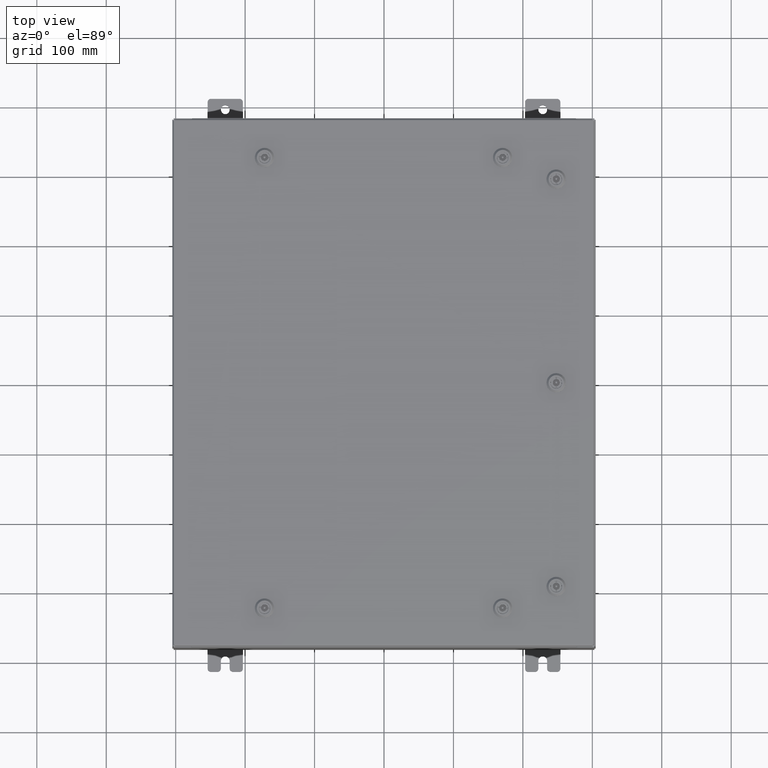
[diagram: clean part render]
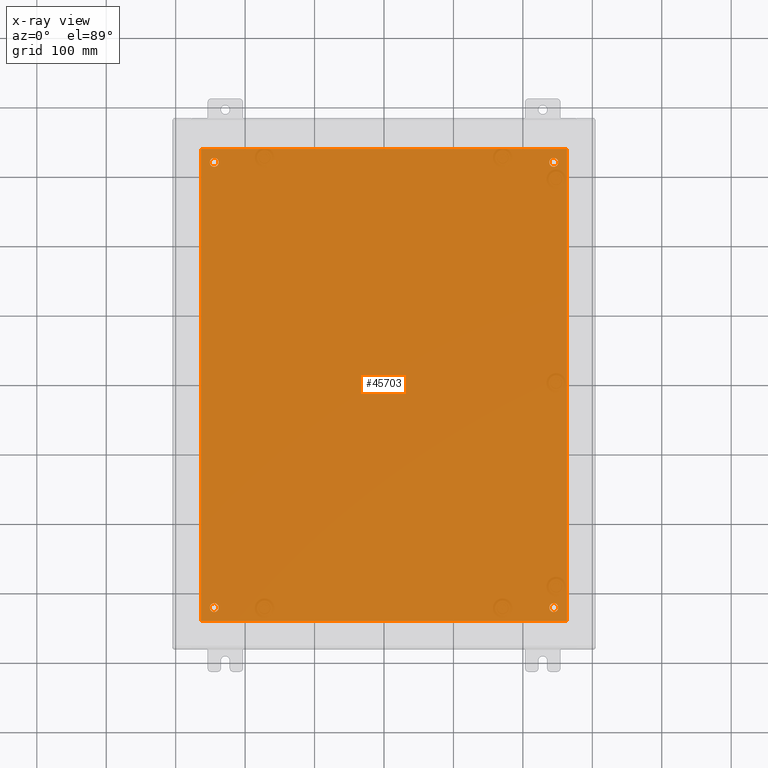
[diagram: x-ray — body ghosted, one internal face saturated and labeled with its STEP entity id]
A machine part, top view, then the same camera in x-ray: the body is ghosted and one INTERNAL B-rep face — a face not visible from any outside direction — is saturated and labeled: STEP entity #45703.
In plain terms, the highlighted planar face has unit normal (0, 0, -1).
Its self-contained STEP definition (entity closure, byte-faithful):
#182 = CARTESIAN_POINT ( 'NONE',  ( 10.38300000000000100, 13.38299999999999700, -0.1040000000000009100 ) ) ;
#796 = DIRECTION ( 'NONE',  ( -0.0000000000000000000, -0.0000000000000000000, 1.000000000000000000 ) ) ;
#2199 = CARTESIAN_POINT ( 'NONE',  ( -9.625000000000007100, 12.62500000000000000, -0.1039999999999999800 ) ) ;
#2887 = CARTESIAN_POINT ( 'NONE',  ( -9.875000000000007100, -12.62500000000000000, -0.1039999999999999800 ) ) ;
#4370 = CIRCLE ( 'NONE', #34669, 0.2499999999999998100 ) ;
#5261 = AXIS2_PLACEMENT_3D ( 'NONE', #2199, #36799, #7191 ) ;
#6336 = EDGE_CURVE ( 'NONE', #44652, #7523, #15443, .T. ) ;
#6778 = ORIENTED_EDGE ( 'NONE', *, *, #24114, .T. ) ;
#7191 = DIRECTION ( 'NONE',  ( -1.000000000000000000, 0.0000000000000000000, 0.0000000000000000000 ) ) ;
#7256 = CARTESIAN_POINT ( 'NONE',  ( 0.0000000000000000000, 0.0000000000000000000, -0.1039999999999999800 ) ) ;
#7523 = VERTEX_POINT ( 'NONE', #11257 ) ;
#8007 = ORIENTED_EDGE ( 'NONE', *, *, #12572, .T. ) ;
#8066 = CARTESIAN_POINT ( 'NONE',  ( -9.625000000000007100, 12.62500000000000000, -0.1039999999999999800 ) ) ;
#8370 = CIRCLE ( 'NONE', #5261, 0.2500000000000008900 ) ;
#8376 = AXIS2_PLACEMENT_3D ( 'NONE', #23209, #57905, #28202 ) ;
#8837 = DIRECTION ( 'NONE',  ( 0.0000000000000000000, 1.000000000000000000, 0.0000000000000000000 ) ) ;
#9211 = CARTESIAN_POINT ( 'NONE',  ( 9.625000000000007100, -12.62500000000000000, -0.1039999999999999800 ) ) ;
#9835 = EDGE_CURVE ( 'NONE', #44196, #47366, #45556, .T. ) ;
#11257 = CARTESIAN_POINT ( 'NONE',  ( 9.375000000000007100, 12.62500000000000000, -0.1039999999999999800 ) ) ;
#11329 = DIRECTION ( 'NONE',  ( -1.000000000000000000, 0.0000000000000000000, 0.0000000000000000000 ) ) ;
#11766 = CARTESIAN_POINT ( 'NONE',  ( -10.38300000000000100, 13.38299999999999700, -0.1040000000000020100 ) ) ;
#12059 = FACE_BOUND ( 'NONE', #48887, .T. ) ;
#12192 = DIRECTION ( 'NONE',  ( -1.000000000000000000, 0.0000000000000000000, -0.0000000000000000000 ) ) ;
#12412 = ORIENTED_EDGE ( 'NONE', *, *, #58195, .T. ) ;
#12572 = EDGE_CURVE ( 'NONE', #39586, #24458, #4370, .T. ) ;
#13019 = DIRECTION ( 'NONE',  ( -1.000000000000000000, 0.0000000000000000000, 0.0000000000000000000 ) ) ;
#13164 = DIRECTION ( 'NONE',  ( -1.000000000000000000, -0.0000000000000000000, -0.0000000000000000000 ) ) ;
#13364 = AXIS2_PLACEMENT_3D ( 'NONE', #16322, #45995, #11329 ) ;
#13441 = ORIENTED_EDGE ( 'NONE', *, *, #9835, .F. ) ;
#14170 = DIRECTION ( 'NONE',  ( -1.000000000000000000, 0.0000000000000000000, 0.0000000000000000000 ) ) ;
#15208 = CARTESIAN_POINT ( 'NONE',  ( -10.38300000000000100, 13.38299999999999700, -0.1040000000000020100 ) ) ;
#15443 = CIRCLE ( 'NONE', #13364, 0.2499999999999998100 ) ;
#16154 = VERTEX_POINT ( 'NONE', #63618 ) ;
#16322 = CARTESIAN_POINT ( 'NONE',  ( 9.625000000000007100, 12.62500000000000000, -0.1039999999999999800 ) ) ;
#16791 = VERTEX_POINT ( 'NONE', #51917 ) ;
#17146 = VERTEX_POINT ( 'NONE', #61451 ) ;
#18590 = CARTESIAN_POINT ( 'NONE',  ( 10.38300000000000100, -13.38299999999999700, -0.1040000000000009100 ) ) ;
#18676 = EDGE_LOOP ( 'NONE', ( #29551, #36257 ) ) ;
#19196 = VECTOR ( 'NONE', #13164, 39.37007874015748100 ) ;
#20518 = ORIENTED_EDGE ( 'NONE', *, *, #25221, .T. ) ;
#21300 = EDGE_LOOP ( 'NONE', ( #49502, #58252, #13441, #63717 ) ) ;
#21573 = VERTEX_POINT ( 'NONE', #46245 ) ;
#21727 = LINE ( 'NONE', #11766, #48126 ) ;
#22265 = ORIENTED_EDGE ( 'NONE', *, *, #28378, .T. ) ;
#23209 = CARTESIAN_POINT ( 'NONE',  ( -9.625000000000007100, -12.62500000000000000, -0.1039999999999999800 ) ) ;
#23212 = CARTESIAN_POINT ( 'NONE',  ( -9.625000000000007100, -12.62500000000000000, -0.1039999999999999800 ) ) ;
#23363 = AXIS2_PLACEMENT_3D ( 'NONE', #8066, #42700, #13019 ) ;
#23437 = CARTESIAN_POINT ( 'NONE',  ( -10.50000000000000200, -13.38299999999999900, -0.1040000000000009100 ) ) ;
#23650 = FACE_OUTER_BOUND ( 'NONE', #21300, .T. ) ;
#23817 = CARTESIAN_POINT ( 'NONE',  ( 9.875000000000007100, 12.62500000000000000, -0.1039999999999999800 ) ) ;
#24114 = EDGE_CURVE ( 'NONE', #21573, #16154, #8370, .T. ) ;
#24458 = VERTEX_POINT ( 'NONE', #33836 ) ;
#25020 = LINE ( 'NONE', #18590, #61479 ) ;
#25221 = EDGE_CURVE ( 'NONE', #16791, #27526, #35233, .T. ) ;
#27526 = VERTEX_POINT ( 'NONE', #2887 ) ;
#27749 = LINE ( 'NONE', #23437, #36256 ) ;
#28202 = DIRECTION ( 'NONE',  ( -1.000000000000000000, 0.0000000000000000000, 0.0000000000000000000 ) ) ;
#28203 = DIRECTION ( 'NONE',  ( -1.000000000000000000, 0.0000000000000000000, 0.0000000000000000000 ) ) ;
#28378 = EDGE_CURVE ( 'NONE', #24458, #39586, #30419, .T. ) ;
#29417 = DIRECTION ( 'NONE',  ( -0.0000000000000000000, -0.0000000000000000000, 1.000000000000000000 ) ) ;
#29484 = CIRCLE ( 'NONE', #8376, 0.2500000000000008900 ) ;
#29551 = ORIENTED_EDGE ( 'NONE', *, *, #6336, .T. ) ;
#29818 = EDGE_CURVE ( 'NONE', #7523, #44652, #34183, .T. ) ;
#30412 = CARTESIAN_POINT ( 'NONE',  ( 9.625000000000007100, -12.62500000000000000, -0.1039999999999999800 ) ) ;
#30419 = CIRCLE ( 'NONE', #38108, 0.2499999999999998100 ) ;
#31087 = EDGE_CURVE ( 'NONE', #27526, #16791, #29484, .T. ) ;
#32147 = VERTEX_POINT ( 'NONE', #57854 ) ;
#33581 = DIRECTION ( 'NONE',  ( 1.000000000000000000, -0.0000000000000000000, -0.0000000000000000000 ) ) ;
#33595 = EDGE_LOOP ( 'NONE', ( #22265, #8007 ) ) ;
#33836 = CARTESIAN_POINT ( 'NONE',  ( 9.875000000000007100, -12.62500000000000000, -0.1039999999999999800 ) ) ;
#34183 = CIRCLE ( 'NONE', #53156, 0.2499999999999998100 ) ;
#34669 = AXIS2_PLACEMENT_3D ( 'NONE', #30412, #796, #35366 ) ;
#35066 = CIRCLE ( 'NONE', #23363, 0.2500000000000008900 ) ;
#35233 = CIRCLE ( 'NONE', #38016, 0.2500000000000008900 ) ;
#35366 = DIRECTION ( 'NONE',  ( -1.000000000000000000, 0.0000000000000000000, 0.0000000000000000000 ) ) ;
#36256 = VECTOR ( 'NONE', #33581, 39.37007874015748100 ) ;
#36257 = ORIENTED_EDGE ( 'NONE', *, *, #29818, .T. ) ;
#36799 = DIRECTION ( 'NONE',  ( -0.0000000000000000000, -0.0000000000000000000, 1.000000000000000000 ) ) ;
#36845 = FACE_BOUND ( 'NONE', #57049, .T. ) ;
#38016 = AXIS2_PLACEMENT_3D ( 'NONE', #23212, #57907, #28203 ) ;
#38108 = AXIS2_PLACEMENT_3D ( 'NONE', #9211, #43855, #14170 ) ;
#39586 = VERTEX_POINT ( 'NONE', #59546 ) ;
#41520 = FACE_BOUND ( 'NONE', #33595, .T. ) ;
#41879 = DIRECTION ( 'NONE',  ( 0.0000000000000000000, 0.0000000000000000000, -1.000000000000000000 ) ) ;
#42700 = DIRECTION ( 'NONE',  ( -0.0000000000000000000, -0.0000000000000000000, 1.000000000000000000 ) ) ;
#43855 = DIRECTION ( 'NONE',  ( -0.0000000000000000000, -0.0000000000000000000, 1.000000000000000000 ) ) ;
#44110 = ORIENTED_EDGE ( 'NONE', *, *, #31087, .T. ) ;
#44196 = VERTEX_POINT ( 'NONE', #182 ) ;
#44652 = VERTEX_POINT ( 'NONE', #23817 ) ;
#45556 = LINE ( 'NONE', #52843, #19196 ) ;
#45703 = ADVANCED_FACE ( 'NONE', ( #12059, #41520, #50063, #36845, #23650 ), #61576, .T. ) ;
#45995 = DIRECTION ( 'NONE',  ( -0.0000000000000000000, -0.0000000000000000000, 1.000000000000000000 ) ) ;
#46245 = CARTESIAN_POINT ( 'NONE',  ( -9.875000000000007100, 12.62500000000000000, -0.1039999999999999800 ) ) ;
#46431 = DIRECTION ( 'NONE',  ( 0.0000000000000000000, -1.000000000000000000, 0.0000000000000000000 ) ) ;
#47366 = VERTEX_POINT ( 'NONE', #15208 ) ;
#48126 = VECTOR ( 'NONE', #46431, 39.37007874015748100 ) ;
#48341 = EDGE_CURVE ( 'NONE', #32147, #44196, #25020, .T. ) ;
#48887 = EDGE_LOOP ( 'NONE', ( #20518, #44110 ) ) ;
#49502 = ORIENTED_EDGE ( 'NONE', *, *, #64092, .F. ) ;
#50063 = FACE_BOUND ( 'NONE', #18676, .T. ) ;
#51917 = CARTESIAN_POINT ( 'NONE',  ( -9.375000000000007100, -12.62500000000000000, -0.1039999999999999800 ) ) ;
#52843 = CARTESIAN_POINT ( 'NONE',  ( 10.50000000000000400, 13.38299999999999900, -0.1040000000000009100 ) ) ;
#53156 = AXIS2_PLACEMENT_3D ( 'NONE', #59122, #29417, #64098 ) ;
#53300 = AXIS2_PLACEMENT_3D ( 'NONE', #7256, #41879, #12192 ) ;
#57049 = EDGE_LOOP ( 'NONE', ( #12412, #6778 ) ) ;
#57854 = CARTESIAN_POINT ( 'NONE',  ( 10.38300000000000100, -13.38299999999999700, -0.1040000000000009100 ) ) ;
#57905 = DIRECTION ( 'NONE',  ( -0.0000000000000000000, -0.0000000000000000000, 1.000000000000000000 ) ) ;
#57907 = DIRECTION ( 'NONE',  ( -0.0000000000000000000, -0.0000000000000000000, 1.000000000000000000 ) ) ;
#58195 = EDGE_CURVE ( 'NONE', #16154, #21573, #35066, .T. ) ;
#58252 = ORIENTED_EDGE ( 'NONE', *, *, #61115, .F. ) ;
#59122 = CARTESIAN_POINT ( 'NONE',  ( 9.625000000000007100, 12.62500000000000000, -0.1039999999999999800 ) ) ;
#59546 = CARTESIAN_POINT ( 'NONE',  ( 9.375000000000007100, -12.62500000000000000, -0.1039999999999999800 ) ) ;
#61115 = EDGE_CURVE ( 'NONE', #47366, #17146, #21727, .T. ) ;
#61451 = CARTESIAN_POINT ( 'NONE',  ( -10.38300000000000100, -13.38299999999999900, -0.1040000000000009100 ) ) ;
#61479 = VECTOR ( 'NONE', #8837, 39.37007874015748100 ) ;
#61576 = PLANE ( 'NONE',  #53300 ) ;
#63618 = CARTESIAN_POINT ( 'NONE',  ( -9.375000000000007100, 12.62500000000000000, -0.1039999999999999800 ) ) ;
#63717 = ORIENTED_EDGE ( 'NONE', *, *, #48341, .F. ) ;
#64092 = EDGE_CURVE ( 'NONE', #17146, #32147, #27749, .T. ) ;
#64098 = DIRECTION ( 'NONE',  ( -1.000000000000000000, 0.0000000000000000000, 0.0000000000000000000 ) ) ;